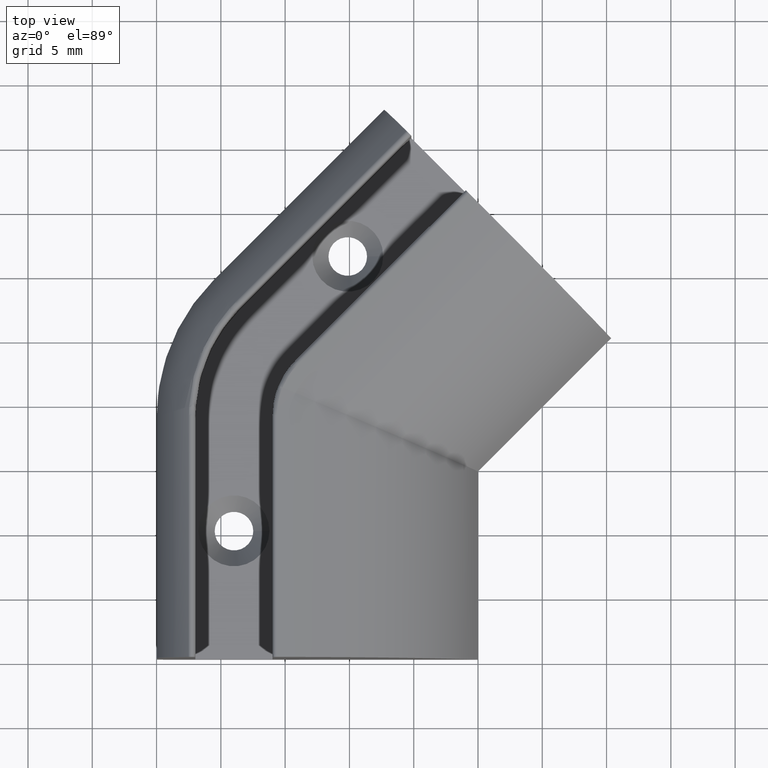
[diagram: clean part render]
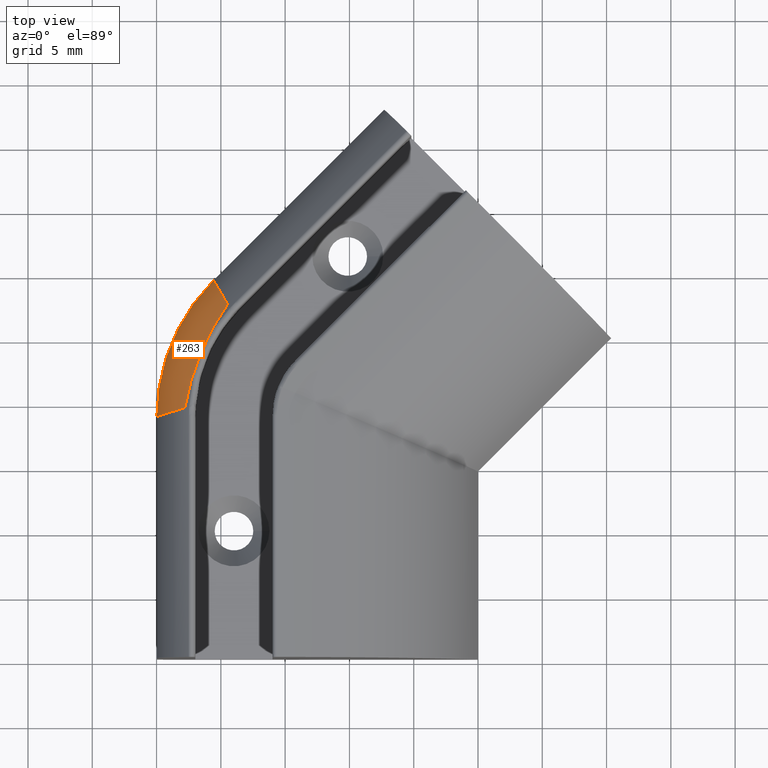
[diagram: same view with one face highlighted and labeled with its STEP entity id]
A machine part, top view. The second image highlights one B-rep face of the part: STEP entity #263.
In plain terms, the highlighted face is a freeform B-spline surface patch.
Its self-contained STEP definition (entity closure, byte-faithful):
#48=CARTESIAN_POINT('',(-20.585681544306709,14.740071921941777,6.499993500000856));
#49=VERTEX_POINT('',#48);
#50=CARTESIAN_POINT('',(-24.979079826508496,4.133470204143563,6.499993500000856));
#51=VERTEX_POINT('',#50);
#52=CARTESIAN_POINT('',(-9.979079826508496,4.133470204143563,6.499993500000866));
#53=DIRECTION('',(-1.598721E-015,9.971650E-016,1.0));
#54=DIRECTION('',(-0.707106781186548,0.707106781186547,-1.835569E-015));
#55=AXIS2_PLACEMENT_3D('',#52,#53,#54);
#56=CIRCLE('',#55,15.000000000000002);
#57=EDGE_CURVE('',#49,#51,#56,.T.);
#172=CARTESIAN_POINT('',(-20.585681544306709,14.740071921941777,6.499993500000838));
#173=CARTESIAN_POINT('',(-21.278767390302168,14.046986075946318,6.499993500000838));
#174=CARTESIAN_POINT('',(-22.532036050204610,12.520284580674176,6.499993500000835));
#175=CARTESIAN_POINT('',(-23.926466805110664,9.910667050346488,6.499993500000837));
#176=CARTESIAN_POINT('',(-24.785733614419513,7.079377355659336,6.499993500000840));
#177=CARTESIAN_POINT('',(-24.979079826508496,5.113641607439170,6.499993500000841));
#178=CARTESIAN_POINT('',(-24.979079826508496,4.133470204143563,6.499993500000842));
#179=CARTESIAN_POINT('',(-20.585681878506303,14.739826968929192,7.038002629507591));
#180=CARTESIAN_POINT('',(-21.278623853036688,14.047082651905514,7.061480327946121));
#181=CARTESIAN_POINT('',(-22.531957938916946,12.520657701314510,7.097435866944814));
#182=CARTESIAN_POINT('',(-23.926707325559960,9.910766677178620,7.115582444316186));
#183=CARTESIAN_POINT('',(-24.785942217533307,7.079058286503173,7.097435866944816));
#184=CARTESIAN_POINT('',(-24.979046619850365,5.113471821749757,7.061480327946123));
#185=CARTESIAN_POINT('',(-24.978906854887018,4.133643648394642,7.038002629507593));
#186=CARTESIAN_POINT('',(-20.536971472058063,14.653605219887663,8.105126492700041));
#187=CARTESIAN_POINT('',(-21.214753692604209,13.963192017613402,8.177829117286899));
#188=CARTESIAN_POINT('',(-22.441701618605904,12.446736092894358,8.288985796244967));
#189=CARTESIAN_POINT('',(-23.813739151996742,9.863973727572224,8.345110640087723));
#190=CARTESIAN_POINT('',(-24.669850890806320,7.067507900956411,8.288985796244965));
#191=CARTESIAN_POINT('',(-24.874563959907082,5.127628434578486,8.177829117286894));
#192=CARTESIAN_POINT('',(-24.883495412740089,4.160168173113777,8.105126492700038));
#193=CARTESIAN_POINT('',(-20.319590824010280,14.271181442670654,9.652774567939877));
#194=CARTESIAN_POINT('',(-20.933149057379829,13.595342874529894,9.780163620577188));
#195=CARTESIAN_POINT('',(-22.050163683345701,12.127300140798196,9.974584035513045));
#196=CARTESIAN_POINT('',(-23.327694593916529,9.662647479697750,10.072651675601222));
#197=CARTESIAN_POINT('',(-24.167116433810079,7.016524099724093,9.974584035513047));
#198=CARTESIAN_POINT('',(-24.415330789198364,5.188612510925749,9.780163620577190));
#199=CARTESIAN_POINT('',(-24.459369636249647,4.276871288937567,9.652774567939876));
#200=CARTESIAN_POINT('',(-20.024599527502708,13.750716185025675,10.862163382705450));
#201=CARTESIAN_POINT('',(-20.560442370359883,13.100091031386391,11.011465543071262));
#202=CARTESIAN_POINT('',(-21.543611070661708,11.705235023849653,11.238745334166763));
#203=CARTESIAN_POINT('',(-22.701363483688993,9.403212639305313,11.353213804449446));
#204=CARTESIAN_POINT('',(-23.510484540056844,6.956782418564100,11.238745334166758));
#205=CARTESIAN_POINT('',(-23.801591426731079,5.275265021822293,11.011465543071260));
#206=CARTESIAN_POINT('',(-23.882754777045385,4.436305455838831,10.862163382705454));
#207=CARTESIAN_POINT('',(-19.728369890007485,13.228596862737861,11.748832073631457));
#208=CARTESIAN_POINT('',(-20.195094260392857,12.608036835187775,11.901025923706396));
#209=CARTESIAN_POINT('',(-21.058178095309955,11.292950684016732,12.132185595702001));
#210=CARTESIAN_POINT('',(-22.103603195800758,9.155612221013943,12.248526730722105));
#211=CARTESIAN_POINT('',(-22.875702538901177,6.905058522354177,12.132185595702005));
#212=CARTESIAN_POINT('',(-23.195316441836376,5.364859754614242,11.901025923706399));
#213=CARTESIAN_POINT('',(-23.304094678205821,4.596033583755743,11.748832073631453));
#214=CARTESIAN_POINT('',(-19.560619612695561,12.932889130075328,12.166263352459929));
#215=CARTESIAN_POINT('',(-19.992559826654542,12.332419620545494,12.313502378364131));
#216=CARTESIAN_POINT('',(-20.795197840805596,11.066282453728689,12.536917145068278));
#217=CARTESIAN_POINT('',(-21.781864981761906,9.022343889225356,12.649202913683403));
#218=CARTESIAN_POINT('',(-22.529468774906761,6.879382043792204,12.536917145068278));
#219=CARTESIAN_POINT('',(-22.857212168830927,5.416537084579403,12.313502378364133));
#220=CARTESIAN_POINT('',(-22.976380376557671,4.686513168137531,12.166263352459936));
#221=CARTESIAN_POINT('',(-19.473666818296095,12.779615631484170,12.363959176375356));
#222=CARTESIAN_POINT('',(-19.887598506933816,12.189051173248409,12.509378411900576));
#223=CARTESIAN_POINT('',(-20.658473482996392,10.947823066169935,12.729889499067099));
#224=CARTESIAN_POINT('',(-21.613921643733136,8.952779480903633,12.840749112940337));
#225=CARTESIAN_POINT('',(-22.349026618108500,6.866466759469940,12.729889499067099));
#226=CARTESIAN_POINT('',(-22.681616506602161,5.443695024934543,12.509378411900579));
#227=CARTESIAN_POINT('',(-22.806514735764694,4.733408987804545,12.363959176375360));
#228=B_SPLINE_SURFACE_WITH_KNOTS('',3,3,((#172,#179,#186,#193,#200,#207,#214,#221),(#173,#180,#187,#194,#201,#208,#215,#222),(#174,#181,#188,#195,#202,#209,#216,#223),(#175,#182,#189,#196,#203,#210,#217,#224),(#176,#183,#190,#197,#204,#211,#218,#225),(#177,#184,#191,#198,#205,#212,#219,#226),(#178,#185,#192,#199,#206,#213,#220,#227)),.UNSPECIFIED.,.F.,.F.,.U.,(4,1,1,1,4),(4,1,1,1,1,4),(0.0,2.659375539080367,5.318751078160733,7.978126617241098,10.637502156321464),(0.0,1.720969949665172,3.416724180996112,5.067111229735253,5.872448841421996,6.662995939819199),.UNSPECIFIED.);
#229=ORIENTED_EDGE('',*,*,#57,.T.);
#230=CARTESIAN_POINT('',(-22.806514735764694,4.733408987804538,12.363959176375364));
#231=VERTEX_POINT('',#230);
#232=CARTESIAN_POINT('',(-24.979079826508496,4.133470204143563,6.499993500000842));
#233=CARTESIAN_POINT('',(-24.979079826508496,4.133470204143563,7.029536956393276));
#234=CARTESIAN_POINT('',(-24.885217113699056,4.159745644129771,8.088507112051154));
#235=CARTESIAN_POINT('',(-24.465056054831166,4.275289384186230,9.638176329136542));
#236=CARTESIAN_POINT('',(-23.775747906457582,4.465896196926884,11.091481529183973));
#237=CARTESIAN_POINT('',(-23.151603218482862,4.638115196396676,11.962172027895210));
#238=CARTESIAN_POINT('',(-22.806514735764694,4.733408987804545,12.363959176375360));
#239=B_SPLINE_CURVE_WITH_KNOTS('',3,(#232,#233,#234,#235,#236,#237,#238),.UNSPECIFIED.,.F.,.U.,(4,1,1,1,4),(0.0,1.577396098376695,3.154792196753390,4.788923645229078,6.423055093704766),.UNSPECIFIED.);
#240=EDGE_CURVE('',#51,#231,#239,.T.);
#241=ORIENTED_EDGE('',*,*,#240,.T.);
#242=CARTESIAN_POINT('',(-19.473666818296095,12.779615631484170,12.363959176375356));
#243=VERTEX_POINT('',#242);
#244=CARTESIAN_POINT('',(-11.427460174616456,4.733408987804536,2.590673275798641));
#245=DIRECTION('',(-0.629046330880701,0.260559521611819,-0.732399787891113));
#246=DIRECTION('',(-0.536413776245309,0.536413776245309,0.651552393371781));
#247=AXIS2_PLACEMENT_3D('',#244,#245,#246);
#248=CIRCLE('',#247,15.000000000000002);
#249=EDGE_CURVE('',#231,#243,#248,.T.);
#250=ORIENTED_EDGE('',*,*,#249,.T.);
#251=CARTESIAN_POINT('',(-20.585681544306709,14.740071921941777,6.499993500000838));
#252=CARTESIAN_POINT('',(-20.585681544306709,14.740071921941777,7.029536956393272));
#253=CARTESIAN_POINT('',(-20.537890125371490,14.655121419420773,8.088507112051158));
#254=CARTESIAN_POINT('',(-20.322493153573063,14.276320923387161,9.638176329136542));
#255=CARTESIAN_POINT('',(-19.969858057360227,13.654127087515796,11.091481529183977));
#256=CARTESIAN_POINT('',(-19.650298338426012,13.091012923833048,11.962172027895207));
#257=CARTESIAN_POINT('',(-19.473666818296095,12.779615631484170,12.363959176375356));
#258=B_SPLINE_CURVE_WITH_KNOTS('',3,(#251,#252,#253,#254,#255,#256,#257),.UNSPECIFIED.,.F.,.U.,(4,1,1,1,4),(0.0,1.577396098376696,3.154792196753391,4.788923645229080,6.423055093704767),.UNSPECIFIED.);
#259=EDGE_CURVE('',#49,#243,#258,.T.);
#260=ORIENTED_EDGE('',*,*,#259,.F.);
#261=EDGE_LOOP('',(#229,#241,#250,#260));
#262=FACE_OUTER_BOUND('',#261,.T.);
#263=ADVANCED_FACE('',(#262),#228,.T.);